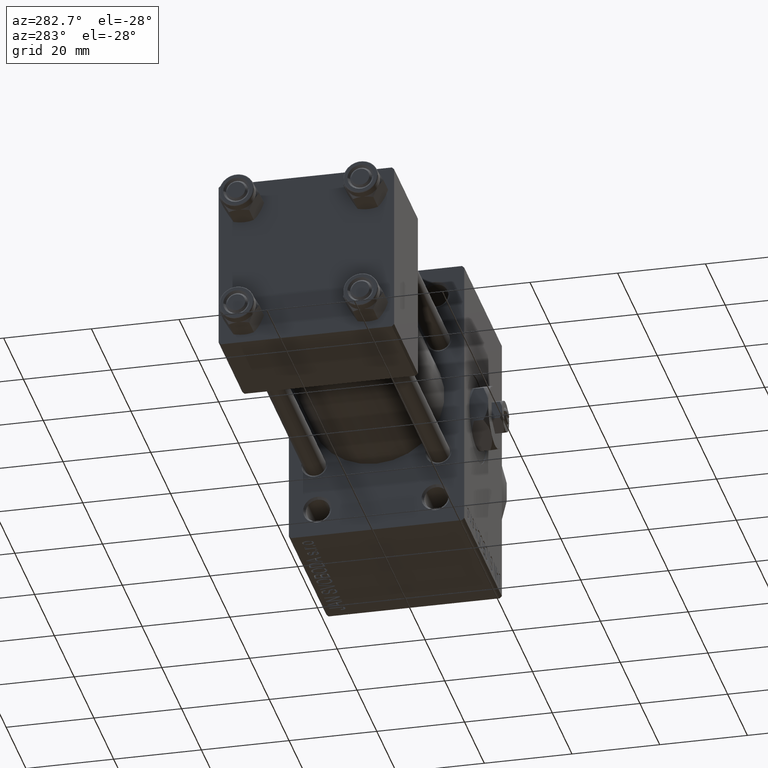
[diagram: clean part render]
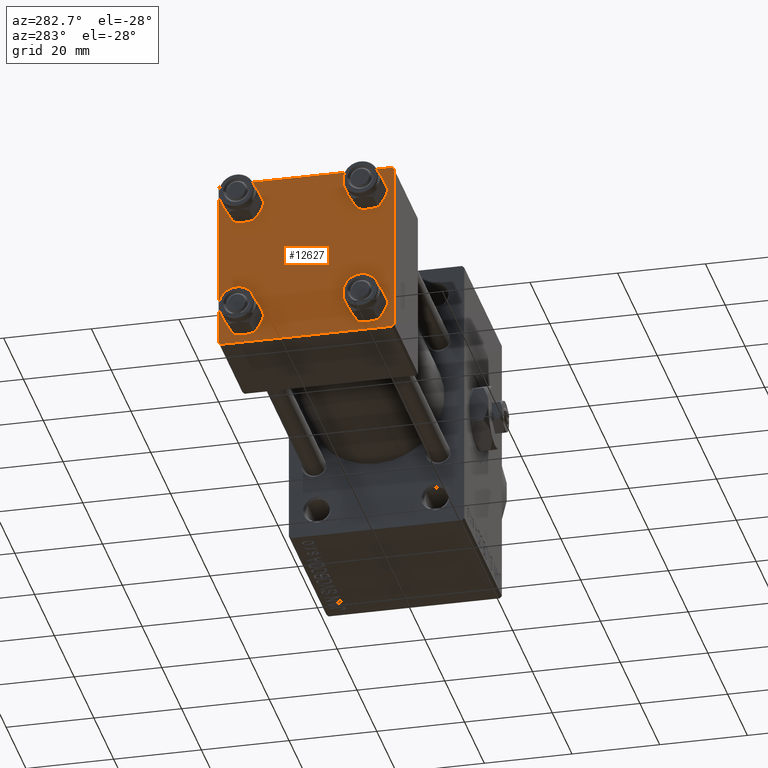
[diagram: same view with one face highlighted and labeled with its STEP entity id]
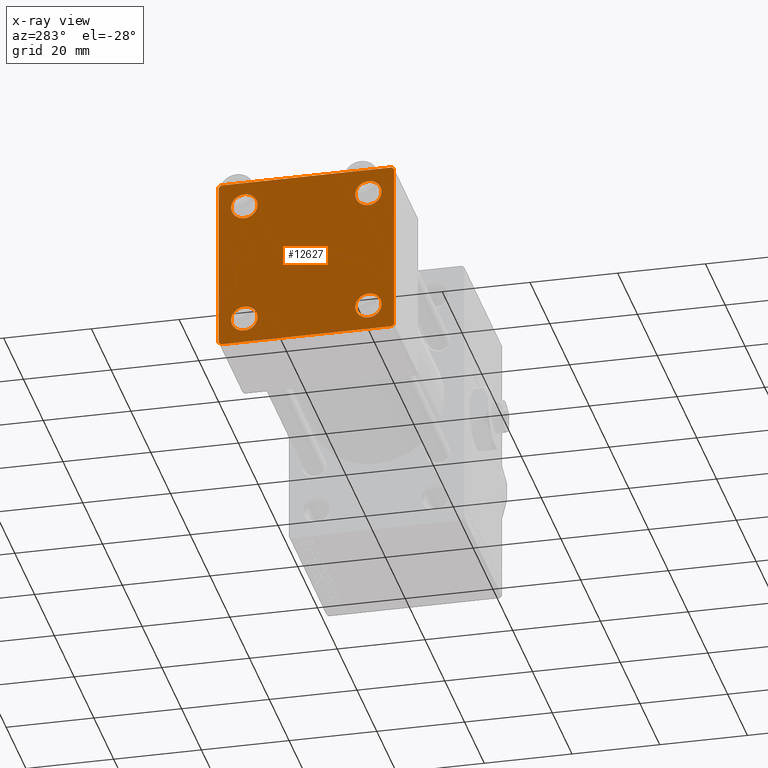
[diagram: x-ray of the same camera — body ghosted, the highlighted face saturated]
A machine part, auxiliary view. The second image highlights one B-rep face of the part: STEP entity #12627.
The next image is the same camera in x-ray: the body ghosted, the highlighted face saturated — about 0% of this face is hidden behind the body in this view.
In plain terms, the highlighted planar face has unit normal (-1, 0, 0).
Its self-contained STEP definition (entity closure, byte-faithful):
#108 = VERTEX_POINT ( 'NONE', #14808 ) ;
#359 = ORIENTED_EDGE ( 'NONE', *, *, #14895, .T. ) ;
#809 = DIRECTION ( 'NONE',  ( 0.000000000000000000, 0.000000000000000000, 1.000000000000000000 ) ) ;
#1385 = VECTOR ( 'NONE', #29949, 1000.000000000000000 ) ;
#1548 = DIRECTION ( 'NONE',  ( 1.000000000000000000, 0.000000000000000000, 0.000000000000000000 ) ) ;
#1779 = CARTESIAN_POINT ( 'NONE',  ( 0.000000000000000000, 14.14999999999999858, 14.15000000000000036 ) ) ;
#2081 = EDGE_LOOP ( 'NONE', ( #2896, #22852 ) ) ;
#2255 = DIRECTION ( 'NONE',  ( 0.000000000000000000, 0.000000000000000000, 1.000000000000000000 ) ) ;
#2896 = ORIENTED_EDGE ( 'NONE', *, *, #40940, .T. ) ;
#2966 = CARTESIAN_POINT ( 'NONE',  ( 0.000000000000000000, 14.14999999999999858, 14.15000000000000036 ) ) ;
#3549 = ORIENTED_EDGE ( 'NONE', *, *, #10388, .F. ) ;
#3568 = CARTESIAN_POINT ( 'NONE',  ( 0.000000000000000000, -14.14999999999999503, 11.15000000000002345 ) ) ;
#3667 = VERTEX_POINT ( 'NONE', #22164 ) ;
#4269 = CARTESIAN_POINT ( 'NONE',  ( 0.000000000000000000, -19.50000000000000711, -20.00000000000000000 ) ) ;
#5285 = VECTOR ( 'NONE', #16074, 1000.000000000000000 ) ;
#5502 = CARTESIAN_POINT ( 'NONE',  ( 0.000000000000000000, 20.00000000000000000, -20.00000000000000711 ) ) ;
#6036 = EDGE_CURVE ( 'NONE', #31520, #36903, #27903, .T. ) ;
#6592 = ORIENTED_EDGE ( 'NONE', *, *, #14489, .T. ) ;
#6904 = CIRCLE ( 'NONE', #14782, 2.999999999999983569 ) ;
#7252 = CIRCLE ( 'NONE', #26120, 2.999999999999983569 ) ;
#7666 = FACE_OUTER_BOUND ( 'NONE', #46897, .T. ) ;
#8072 = DIRECTION ( 'NONE',  ( 0.000000000000000000, 0.7071067811865425767, -0.7071067811865525687 ) ) ;
#8426 = CARTESIAN_POINT ( 'NONE',  ( 0.000000000000000000, 14.14999999999999858, 17.14999999999998437 ) ) ;
#8455 = DIRECTION ( 'NONE',  ( 0.000000000000000000, 0.000000000000000000, 1.000000000000000000 ) ) ;
#8579 = VERTEX_POINT ( 'NONE', #36383 ) ;
#9805 = ORIENTED_EDGE ( 'NONE', *, *, #16685, .T. ) ;
#9945 = CARTESIAN_POINT ( 'NONE',  ( 0.000000000000000000, 20.00000000000000000, -19.50000000000002132 ) ) ;
#10156 = AXIS2_PLACEMENT_3D ( 'NONE', #27166, #42190, #8455 ) ;
#10388 = EDGE_CURVE ( 'NONE', #15509, #3667, #38162, .T. ) ;
#10971 = DIRECTION ( 'NONE',  ( 0.000000000000000000, 0.000000000000000000, 1.000000000000000000 ) ) ;
#11106 = LINE ( 'NONE', #23141, #42876 ) ;
#11834 = FACE_BOUND ( 'NONE', #2081, .T. ) ;
#11934 = CARTESIAN_POINT ( 'NONE',  ( 0.000000000000000000, -14.14999999999999503, -14.15000000000000391 ) ) ;
#12047 = DIRECTION ( 'NONE',  ( 0.000000000000000000, 8.673617379884036705E-17, -1.000000000000000000 ) ) ;
#12627 = ADVANCED_FACE ( 'NONE', ( #26377, #11834, #41878, #14815, #7666 ), #19239, .T. ) ;
#12720 = AXIS2_PLACEMENT_3D ( 'NONE', #38280, #35557, #42942 ) ;
#13096 = DIRECTION ( 'NONE',  ( 1.000000000000000000, 0.000000000000000000, 0.000000000000000000 ) ) ;
#13453 = VERTEX_POINT ( 'NONE', #30082 ) ;
#14047 = DIRECTION ( 'NONE',  ( 0.000000000000000000, 0.000000000000000000, 1.000000000000000000 ) ) ;
#14464 = EDGE_CURVE ( 'NONE', #108, #8579, #27148, .T. ) ;
#14489 = EDGE_CURVE ( 'NONE', #36780, #31520, #48414, .T. ) ;
#14782 = AXIS2_PLACEMENT_3D ( 'NONE', #47992, #18211, #28786 ) ;
#14808 = CARTESIAN_POINT ( 'NONE',  ( 0.000000000000000000, 19.50000000000000000, 20.00000000000000000 ) ) ;
#14815 = FACE_BOUND ( 'NONE', #32626, .T. ) ;
#14895 = EDGE_CURVE ( 'NONE', #25970, #38826, #6904, .T. ) ;
#15132 = AXIS2_PLACEMENT_3D ( 'NONE', #17778, #29573, #36237 ) ;
#15509 = VERTEX_POINT ( 'NONE', #36072 ) ;
#15749 = CARTESIAN_POINT ( 'NONE',  ( 0.000000000000000000, -20.00000000000000355, 19.99999999999998934 ) ) ;
#15757 = DIRECTION ( 'NONE',  ( 0.000000000000000000, -0.7071067811865401342, 0.7071067811865549002 ) ) ;
#16074 = DIRECTION ( 'NONE',  ( 0.000000000000000000, -1.000000000000000000, -2.602085213965210149E-16 ) ) ;
#16654 = VERTEX_POINT ( 'NONE', #45870 ) ;
#16685 = EDGE_CURVE ( 'NONE', #39292, #45886, #41562, .T. ) ;
#16736 = VECTOR ( 'NONE', #47939, 1000.000000000000114 ) ;
#17778 = CARTESIAN_POINT ( 'NONE',  ( 0.000000000000000000, 14.14999999999999858, -14.15000000000000036 ) ) ;
#18211 = DIRECTION ( 'NONE',  ( 1.000000000000000000, 0.000000000000000000, 0.000000000000000000 ) ) ;
#18930 = EDGE_CURVE ( 'NONE', #30628, #16654, #31395, .T. ) ;
#19239 = PLANE ( 'NONE',  #28860 ) ;
#19551 = CARTESIAN_POINT ( 'NONE',  ( 0.000000000000000000, -14.14999999999999503, -17.15000000000000924 ) ) ;
#20262 = CARTESIAN_POINT ( 'NONE',  ( 0.000000000000000000, 14.14999999999999858, -14.15000000000000036 ) ) ;
#20471 = CARTESIAN_POINT ( 'NONE',  ( 0.000000000000000000, 14.14999999999999858, -11.15000000000001812 ) ) ;
#20771 = ORIENTED_EDGE ( 'NONE', *, *, #28616, .T. ) ;
#21590 = CARTESIAN_POINT ( 'NONE',  ( -0.000000000000000000, -19.74999999999992539, 19.75000000000006395 ) ) ;
#21865 = ORIENTED_EDGE ( 'NONE', *, *, #14464, .F. ) ;
#22164 = CARTESIAN_POINT ( 'NONE',  ( 0.000000000000000000, -20.00000000000000000, -19.49999999999999645 ) ) ;
#22852 = ORIENTED_EDGE ( 'NONE', *, *, #18930, .T. ) ;
#23141 = CARTESIAN_POINT ( 'NONE',  ( 0.000000000000000000, -19.75000000000020961, -19.74999999999979394 ) ) ;
#23154 = CARTESIAN_POINT ( 'NONE',  ( 0.000000000000000000, 0.000000000000000000, 0.000000000000000000 ) ) ;
#24069 = CARTESIAN_POINT ( 'NONE',  ( 0.000000000000000000, 20.00000000000000000, 20.00000000000000000 ) ) ;
#24085 = ORIENTED_EDGE ( 'NONE', *, *, #48301, .T. ) ;
#24744 = AXIS2_PLACEMENT_3D ( 'NONE', #1779, #13096, #2255 ) ;
#25319 = CARTESIAN_POINT ( 'NONE',  ( 0.000000000000000000, -14.14999999999999503, 17.14999999999998792 ) ) ;
#25325 = LINE ( 'NONE', #26306, #27116 ) ;
#25963 = VECTOR ( 'NONE', #39959, 1000.000000000000000 ) ;
#25970 = VERTEX_POINT ( 'NONE', #25319 ) ;
#26120 = AXIS2_PLACEMENT_3D ( 'NONE', #2966, #47308, #14047 ) ;
#26226 = CIRCLE ( 'NONE', #41969, 3.000000000000004441 ) ;
#26306 = CARTESIAN_POINT ( 'NONE',  ( -0.000000000000000000, 19.75000000000013500, 19.74999999999986144 ) ) ;
#26377 = FACE_BOUND ( 'NONE', #27701, .T. ) ;
#27116 = VECTOR ( 'NONE', #8072, 999.9999999999998863 ) ;
#27148 = LINE ( 'NONE', #33646, #5285 ) ;
#27166 = CARTESIAN_POINT ( 'NONE',  ( 0.000000000000000000, -14.14999999999999503, -14.15000000000000391 ) ) ;
#27190 = VECTOR ( 'NONE', #31702, 1000.000000000000000 ) ;
#27701 = EDGE_LOOP ( 'NONE', ( #359, #20771 ) ) ;
#27903 = LINE ( 'NONE', #5502, #25963 ) ;
#28383 = VERTEX_POINT ( 'NONE', #31670 ) ;
#28616 = EDGE_CURVE ( 'NONE', #38826, #25970, #33963, .T. ) ;
#28786 = DIRECTION ( 'NONE',  ( 0.000000000000000000, 0.000000000000000000, 1.000000000000000000 ) ) ;
#28860 = AXIS2_PLACEMENT_3D ( 'NONE', #23154, #30074, #48544 ) ;
#29096 = EDGE_CURVE ( 'NONE', #47593, #13453, #7252, .T. ) ;
#29573 = DIRECTION ( 'NONE',  ( 1.000000000000000000, 0.000000000000000000, 0.000000000000000000 ) ) ;
#29949 = DIRECTION ( 'NONE',  ( -0.000000000000000000, -0.7071067811865524577, -0.7071067811865426878 ) ) ;
#30074 = DIRECTION ( 'NONE',  ( -1.000000000000000000, 0.000000000000000000, -0.000000000000000000 ) ) ;
#30082 = CARTESIAN_POINT ( 'NONE',  ( 0.000000000000000000, 14.14999999999999858, 11.15000000000001990 ) ) ;
#30628 = VERTEX_POINT ( 'NONE', #19551 ) ;
#31395 = CIRCLE ( 'NONE', #10156, 3.000000000000004441 ) ;
#31520 = VERTEX_POINT ( 'NONE', #33609 ) ;
#31670 = CARTESIAN_POINT ( 'NONE',  ( 0.000000000000000000, 20.00000000000000000, 19.49999999999999289 ) ) ;
#31702 = DIRECTION ( 'NONE',  ( 0.000000000000000000, 0.000000000000000000, -1.000000000000000000 ) ) ;
#32626 = EDGE_LOOP ( 'NONE', ( #38109, #45053 ) ) ;
#33209 = ORIENTED_EDGE ( 'NONE', *, *, #46122, .T. ) ;
#33429 = CIRCLE ( 'NONE', #24744, 2.999999999999983569 ) ;
#33609 = CARTESIAN_POINT ( 'NONE',  ( 0.000000000000000000, 19.50000000000000711, -20.00000000000000711 ) ) ;
#33646 = CARTESIAN_POINT ( 'NONE',  ( 0.000000000000000000, 20.00000000000000000, 20.00000000000000000 ) ) ;
#33963 = CIRCLE ( 'NONE', #12720, 2.999999999999983569 ) ;
#35164 = VECTOR ( 'NONE', #12047, 1000.000000000000000 ) ;
#35557 = DIRECTION ( 'NONE',  ( 1.000000000000000000, 0.000000000000000000, 0.000000000000000000 ) ) ;
#36072 = CARTESIAN_POINT ( 'NONE',  ( 0.000000000000000000, -20.00000000000000355, 19.49999999999998224 ) ) ;
#36237 = DIRECTION ( 'NONE',  ( 0.000000000000000000, 0.000000000000000000, 1.000000000000000000 ) ) ;
#36383 = CARTESIAN_POINT ( 'NONE',  ( 0.000000000000000000, -19.49999999999999289, 19.99999999999998934 ) ) ;
#36780 = VERTEX_POINT ( 'NONE', #9945 ) ;
#36903 = VERTEX_POINT ( 'NONE', #4269 ) ;
#37242 = EDGE_CURVE ( 'NONE', #45886, #39292, #39843, .T. ) ;
#37379 = ORIENTED_EDGE ( 'NONE', *, *, #38477, .T. ) ;
#37556 = ORIENTED_EDGE ( 'NONE', *, *, #37242, .T. ) ;
#38109 = ORIENTED_EDGE ( 'NONE', *, *, #29096, .T. ) ;
#38162 = LINE ( 'NONE', #15749, #35164 ) ;
#38280 = CARTESIAN_POINT ( 'NONE',  ( 0.000000000000000000, -14.14999999999999503, 14.15000000000000391 ) ) ;
#38477 = EDGE_CURVE ( 'NONE', #15509, #8579, #43755, .T. ) ;
#38826 = VERTEX_POINT ( 'NONE', #3568 ) ;
#38977 = CARTESIAN_POINT ( 'NONE',  ( -0.000000000000000000, 19.74999999999986855, -19.75000000000014211 ) ) ;
#39292 = VERTEX_POINT ( 'NONE', #20471 ) ;
#39843 = CIRCLE ( 'NONE', #15132, 2.999999999999983569 ) ;
#39959 = DIRECTION ( 'NONE',  ( 0.000000000000000000, -1.000000000000000000, 1.734723475976807094E-16 ) ) ;
#40247 = LINE ( 'NONE', #24069, #27190 ) ;
#40610 = CARTESIAN_POINT ( 'NONE',  ( 0.000000000000000000, 14.14999999999999858, -17.14999999999998437 ) ) ;
#40940 = EDGE_CURVE ( 'NONE', #16654, #30628, #26226, .T. ) ;
#41562 = CIRCLE ( 'NONE', #46263, 2.999999999999983569 ) ;
#41878 = FACE_BOUND ( 'NONE', #42494, .T. ) ;
#41969 = AXIS2_PLACEMENT_3D ( 'NONE', #11934, #44713, #10971 ) ;
#42190 = DIRECTION ( 'NONE',  ( 1.000000000000000000, 0.000000000000000000, 0.000000000000000000 ) ) ;
#42267 = ORIENTED_EDGE ( 'NONE', *, *, #47910, .T. ) ;
#42494 = EDGE_LOOP ( 'NONE', ( #9805, #37556 ) ) ;
#42876 = VECTOR ( 'NONE', #15757, 1000.000000000000000 ) ;
#42942 = DIRECTION ( 'NONE',  ( 0.000000000000000000, 0.000000000000000000, 1.000000000000000000 ) ) ;
#43755 = LINE ( 'NONE', #21590, #16736 ) ;
#44435 = EDGE_CURVE ( 'NONE', #13453, #47593, #33429, .T. ) ;
#44523 = ORIENTED_EDGE ( 'NONE', *, *, #6036, .T. ) ;
#44713 = DIRECTION ( 'NONE',  ( 1.000000000000000000, 0.000000000000000000, 0.000000000000000000 ) ) ;
#45053 = ORIENTED_EDGE ( 'NONE', *, *, #44435, .T. ) ;
#45870 = CARTESIAN_POINT ( 'NONE',  ( 0.000000000000000000, -14.14999999999999503, -11.15000000000000036 ) ) ;
#45886 = VERTEX_POINT ( 'NONE', #40610 ) ;
#46122 = EDGE_CURVE ( 'NONE', #28383, #36780, #40247, .T. ) ;
#46263 = AXIS2_PLACEMENT_3D ( 'NONE', #20262, #1548, #809 ) ;
#46897 = EDGE_LOOP ( 'NONE', ( #33209, #6592, #44523, #42267, #3549, #37379, #21865, #24085 ) ) ;
#47308 = DIRECTION ( 'NONE',  ( 1.000000000000000000, 0.000000000000000000, 0.000000000000000000 ) ) ;
#47593 = VERTEX_POINT ( 'NONE', #8426 ) ;
#47910 = EDGE_CURVE ( 'NONE', #36903, #3667, #11106, .T. ) ;
#47939 = DIRECTION ( 'NONE',  ( -0.000000000000000000, 0.7071067811865500152, 0.7071067811865451302 ) ) ;
#47992 = CARTESIAN_POINT ( 'NONE',  ( 0.000000000000000000, -14.14999999999999503, 14.15000000000000391 ) ) ;
#48301 = EDGE_CURVE ( 'NONE', #108, #28383, #25325, .T. ) ;
#48414 = LINE ( 'NONE', #38977, #1385 ) ;
#48544 = DIRECTION ( 'NONE',  ( -0.000000000000000000, 0.000000000000000000, 1.000000000000000000 ) ) ;